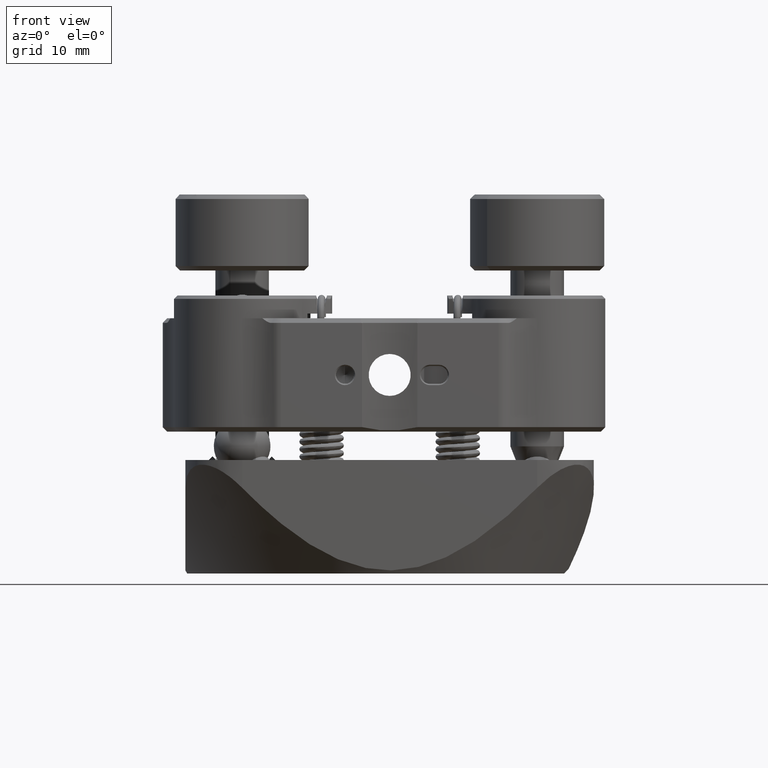
[diagram: clean part render]
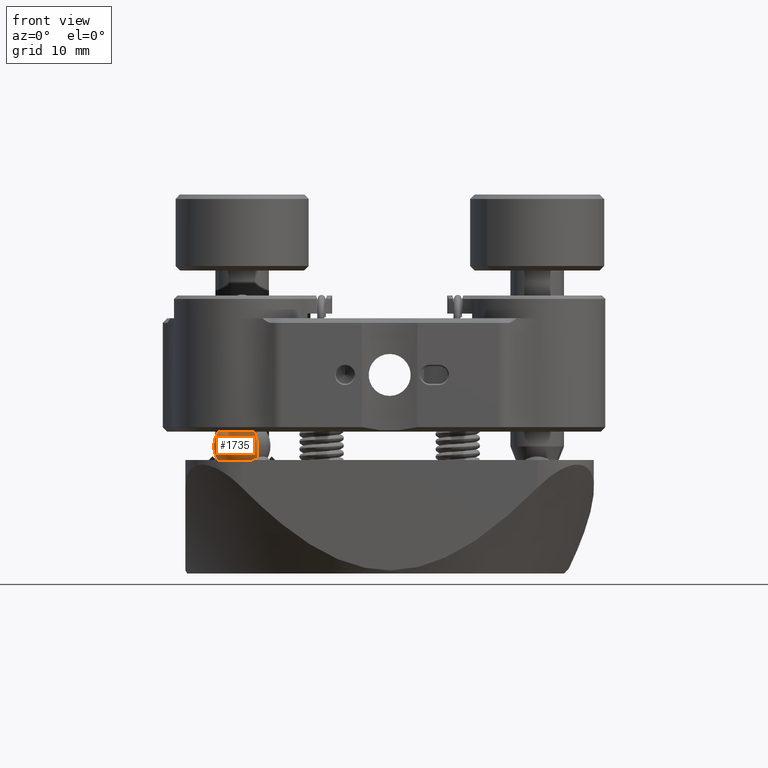
[diagram: same view with one face highlighted and labeled with its STEP entity id]
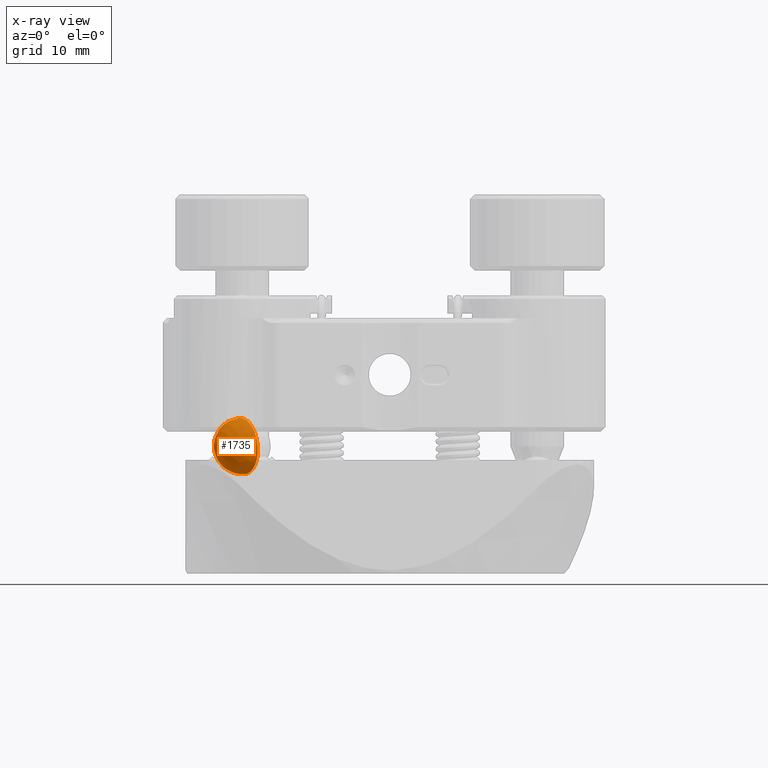
[diagram: x-ray of the same camera — body ghosted, the highlighted face saturated]
A machine part, front view. The second image highlights one B-rep face of the part: STEP entity #1735.
The next image is the same camera in x-ray: the body ghosted, the highlighted face saturated — about 0% of this face is hidden behind the body in this view.
In plain terms, the highlighted spherical surface has radius 3.175 mm.
Its self-contained STEP definition (entity closure, byte-faithful):
#988 = DIRECTION ( 'NONE',  ( 0.000000000000000000, 0.000000000000000000, 1.000000000000000000 ) ) ;
#1735 = ADVANCED_FACE ( 'NONE', ( #19102 ), #20376, .T. ) ;
#2486 = DIRECTION ( 'NONE',  ( 1.000000000000000000, 0.000000000000000000, 0.000000000000000000 ) ) ;
#3985 = AXIS2_PLACEMENT_3D ( 'NONE', #10638, #14059, #17056 ) ;
#5638 = CIRCLE ( 'NONE', #13162, 3.174999999999999822 ) ;
#7363 = AXIS2_PLACEMENT_3D ( 'NONE', #9942, #10261, #16464 ) ;
#8832 = EDGE_CURVE ( 'NONE', #16146, #12761, #5638, .T. ) ;
#9942 = CARTESIAN_POINT ( 'NONE',  ( 0.000000000000000000, 0.000000000000000000, 0.000000000000000000 ) ) ;
#10261 = DIRECTION ( 'NONE',  ( 1.224646799147353207E-16, 0.000000000000000000, -1.000000000000000000 ) ) ;
#10638 = CARTESIAN_POINT ( 'NONE',  ( 0.000000000000000000, 0.000000000000000000, 0.000000000000000000 ) ) ;
#10811 = CARTESIAN_POINT ( 'NONE',  ( 1.944126793646423041E-16, -3.174999999999999822, 0.000000000000000000 ) ) ;
#11110 = EDGE_CURVE ( 'NONE', #16146, #12761, #15228, .T. ) ;
#12365 = CARTESIAN_POINT ( 'NONE',  ( 0.000000000000000000, 0.000000000000000000, 0.000000000000000000 ) ) ;
#12761 = VERTEX_POINT ( 'NONE', #17456 ) ;
#13162 = AXIS2_PLACEMENT_3D ( 'NONE', #12365, #988, #2486 ) ;
#13942 = EDGE_LOOP ( 'NONE', ( #20181, #17769 ) ) ;
#14059 = DIRECTION ( 'NONE',  ( 0.000000000000000000, 0.000000000000000000, -1.000000000000000000 ) ) ;
#15228 = CIRCLE ( 'NONE', #7363, 3.174999999999999822 ) ;
#16146 = VERTEX_POINT ( 'NONE', #10811 ) ;
#16464 = DIRECTION ( 'NONE',  ( -1.000000000000000000, 0.000000000000000000, -1.224646799147353207E-16 ) ) ;
#17056 = DIRECTION ( 'NONE',  ( 1.000000000000000000, 0.000000000000000000, 0.000000000000000000 ) ) ;
#17456 = CARTESIAN_POINT ( 'NONE',  ( 1.944126793646423041E-16, 3.174999999999999822, 0.000000000000000000 ) ) ;
#17769 = ORIENTED_EDGE ( 'NONE', *, *, #11110, .T. ) ;
#19102 = FACE_OUTER_BOUND ( 'NONE', #13942, .T. ) ;
#20181 = ORIENTED_EDGE ( 'NONE', *, *, #8832, .F. ) ;
#20376 = SPHERICAL_SURFACE ( 'NONE', #3985, 3.174999999999999822 ) ;